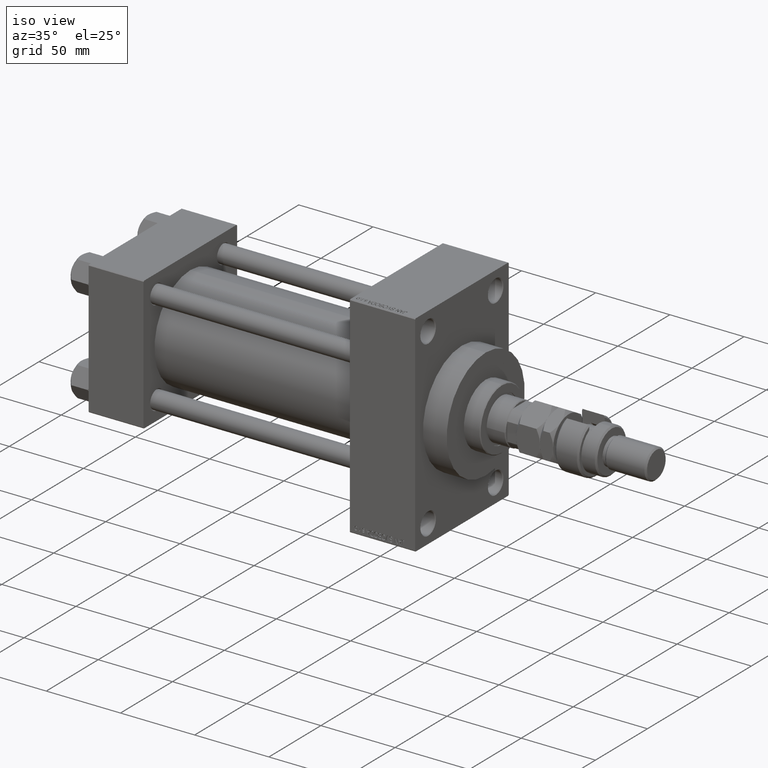
[diagram: clean part render]
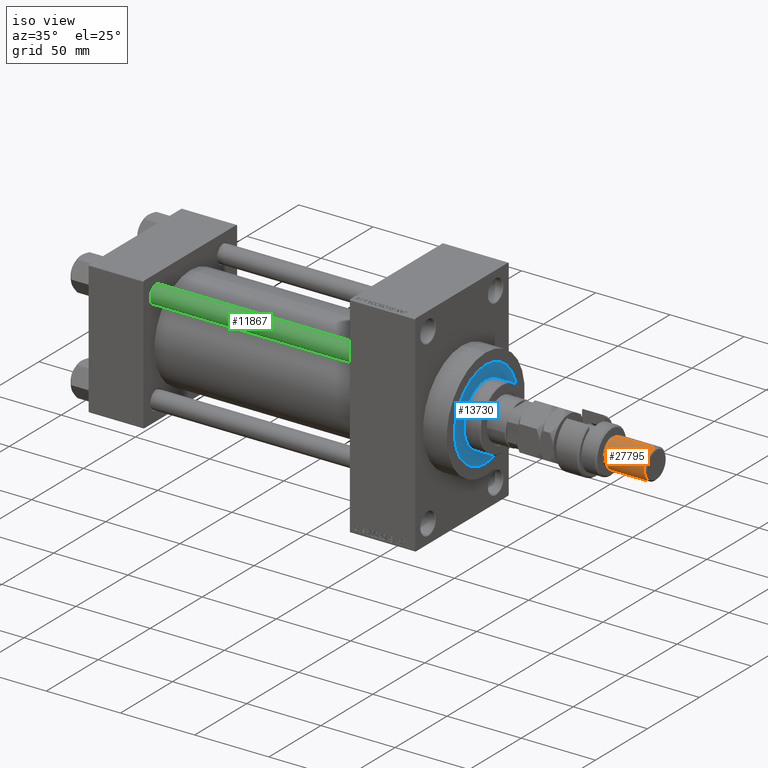
[diagram: same view with three faces highlighted in distinct colors, each labeled with its STEP entity id]
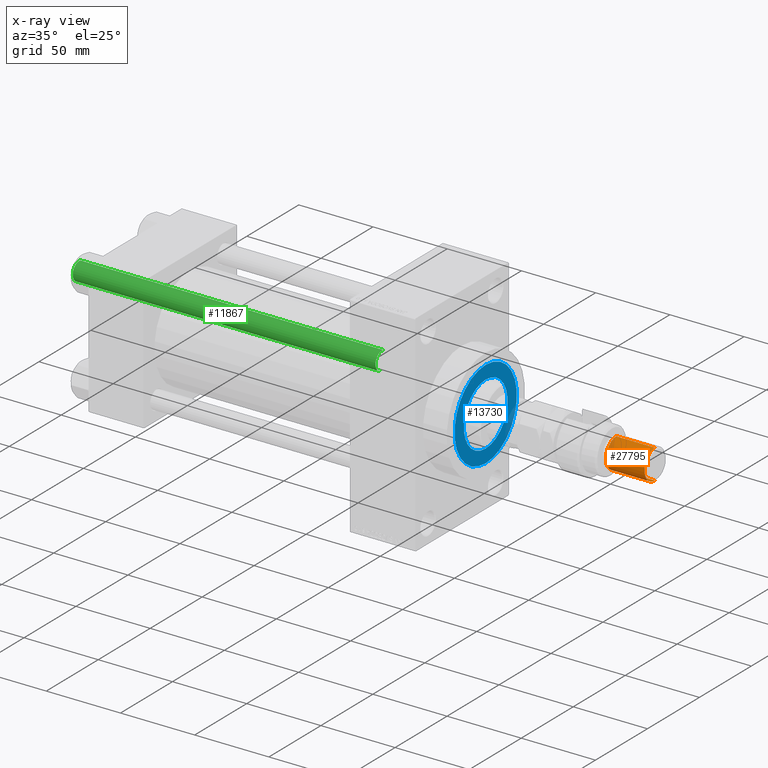
[diagram: x-ray of the same camera — body ghosted, the three highlighted faces saturated]
A machine part, iso view with three faces highlighted in distinct colors.
The next image is the same camera in x-ray (body ghosted, the three faces saturated) — at least one of them is partly hidden behind the body in this view.
Their STEP definitions:

[orange] entity #27795 — the highlighted cylindrical surface (edge-blend (fillet) strip) has radius 10 mm, axis along (-1, -0, 0).
#711 = EDGE_LOOP ( 'NONE', ( #24158, #45330, #40209, #37050 ) ) ;
#1414 = DIRECTION ( 'NONE',  ( -0.000000000000000000, -0.000000000000000000, -1.000000000000000000 ) ) ;
#2160 = LINE ( 'NONE', #28244, #18640 ) ;
#4596 = VECTOR ( 'NONE', #22952, 1000.000000000000000 ) ;
#6423 = AXIS2_PLACEMENT_3D ( 'NONE', #24288, #32890, #36692 ) ;
#7818 = VERTEX_POINT ( 'NONE', #14844 ) ;
#9440 = CARTESIAN_POINT ( 'NONE',  ( 10.00000000000000000, 1.224646799147353256E-15, 29.00000000000000711 ) ) ;
#9944 = EDGE_CURVE ( 'NONE', #13372, #26056, #26753, .T. ) ;
#9946 = AXIS2_PLACEMENT_3D ( 'NONE', #22884, #49240, #22640 ) ;
#10474 = CIRCLE ( 'NONE', #6423, 10.00000000000000000 ) ;
#12013 = CARTESIAN_POINT ( 'NONE',  ( -10.00000000000000000, 0.000000000000000000, 29.00000000000000711 ) ) ;
#12066 = EDGE_CURVE ( 'NONE', #7818, #13372, #14385, .T. ) ;
#13372 = VERTEX_POINT ( 'NONE', #35009 ) ;
#14385 = CIRCLE ( 'NONE', #35440, 10.00000000000000000 ) ;
#14844 = CARTESIAN_POINT ( 'NONE',  ( 10.00000000000000000, 1.224646799147353256E-15, 54.99999999999998579 ) ) ;
#16380 = EDGE_CURVE ( 'NONE', #26056, #23955, #10474, .T. ) ;
#18640 = VECTOR ( 'NONE', #1414, 1000.000000000000000 ) ;
#22640 = DIRECTION ( 'NONE',  ( -1.000000000000000000, 0.000000000000000000, 0.000000000000000000 ) ) ;
#22884 = CARTESIAN_POINT ( 'NONE',  ( 0.000000000000000000, 0.000000000000000000, 56.00000000000000711 ) ) ;
#22952 = DIRECTION ( 'NONE',  ( -0.000000000000000000, -0.000000000000000000, -1.000000000000000000 ) ) ;
#23241 = DIRECTION ( 'NONE',  ( 1.000000000000000000, 0.000000000000000000, 0.000000000000000000 ) ) ;
#23955 = VERTEX_POINT ( 'NONE', #9440 ) ;
#24158 = ORIENTED_EDGE ( 'NONE', *, *, #32240, .F. ) ;
#24288 = CARTESIAN_POINT ( 'NONE',  ( 0.000000000000000000, 0.000000000000000000, 29.00000000000000711 ) ) ;
#25940 = FACE_OUTER_BOUND ( 'NONE', #711, .T. ) ;
#26056 = VERTEX_POINT ( 'NONE', #12013 ) ;
#26753 = LINE ( 'NONE', #42204, #4596 ) ;
#27795 = ADVANCED_FACE ( 'NONE', ( #25940 ), #30996, .T. ) ;
#28244 = CARTESIAN_POINT ( 'NONE',  ( 10.00000000000000000, 1.224646799147353256E-15, 56.00000000000000711 ) ) ;
#30358 = DIRECTION ( 'NONE',  ( 0.000000000000000000, 0.000000000000000000, -1.000000000000000000 ) ) ;
#30996 = CYLINDRICAL_SURFACE ( 'NONE', #9946, 10.00000000000000000 ) ;
#32240 = EDGE_CURVE ( 'NONE', #7818, #23955, #2160, .T. ) ;
#32890 = DIRECTION ( 'NONE',  ( -0.000000000000000000, -0.000000000000000000, 1.000000000000000000 ) ) ;
#34902 = CARTESIAN_POINT ( 'NONE',  ( 0.000000000000000000, 0.000000000000000000, 54.99999999999998579 ) ) ;
#35009 = CARTESIAN_POINT ( 'NONE',  ( -10.00000000000000000, 0.000000000000000000, 54.99999999999998579 ) ) ;
#35440 = AXIS2_PLACEMENT_3D ( 'NONE', #34902, #30358, #23241 ) ;
#36692 = DIRECTION ( 'NONE',  ( 1.000000000000000000, 0.000000000000000000, 0.000000000000000000 ) ) ;
#37050 = ORIENTED_EDGE ( 'NONE', *, *, #16380, .T. ) ;
#40209 = ORIENTED_EDGE ( 'NONE', *, *, #9944, .T. ) ;
#42204 = CARTESIAN_POINT ( 'NONE',  ( -10.00000000000000000, 0.000000000000000000, 56.00000000000000711 ) ) ;
#45330 = ORIENTED_EDGE ( 'NONE', *, *, #12066, .T. ) ;
#49240 = DIRECTION ( 'NONE',  ( -0.000000000000000000, -0.000000000000000000, -1.000000000000000000 ) ) ;

[blue] entity #13730 — the highlighted planar face has unit normal (1, -0, -0).
#2189 = DIRECTION ( 'NONE',  ( 1.000000000000000000, 0.000000000000000000, -0.000000000000000000 ) ) ;
#3298 = ORIENTED_EDGE ( 'NONE', *, *, #41228, .F. ) ;
#3878 = DIRECTION ( 'NONE',  ( 1.000000000000000000, 0.000000000000000000, 0.000000000000000000 ) ) ;
#6784 = VERTEX_POINT ( 'NONE', #22277 ) ;
#8473 = EDGE_CURVE ( 'NONE', #11992, #6784, #38552, .T. ) ;
#10517 = FACE_BOUND ( 'NONE', #21741, .T. ) ;
#10943 = DIRECTION ( 'NONE',  ( 1.000000000000000000, 0.000000000000000000, 0.000000000000000000 ) ) ;
#11195 = CARTESIAN_POINT ( 'NONE',  ( 0.000000000000000000, 0.000000000000000000, 43.25999999999999801 ) ) ;
#11657 = DIRECTION ( 'NONE',  ( 1.000000000000000000, 0.000000000000000000, 0.000000000000000000 ) ) ;
#11992 = VERTEX_POINT ( 'NONE', #13148 ) ;
#12184 = VERTEX_POINT ( 'NONE', #36400 ) ;
#13148 = CARTESIAN_POINT ( 'NONE',  ( -30.00000000000000000, 0.000000000000000000, 43.25999999999999801 ) ) ;
#13730 = ADVANCED_FACE ( 'NONE', ( #10517, #40670 ), #25976, .T. ) ;
#15005 = DIRECTION ( 'NONE',  ( 0.000000000000000000, 0.000000000000000000, 1.000000000000000000 ) ) ;
#15221 = CARTESIAN_POINT ( 'NONE',  ( 0.000000000000000000, 0.000000000000000000, 43.25999999999999801 ) ) ;
#15489 = ORIENTED_EDGE ( 'NONE', *, *, #43056, .F. ) ;
#15911 = AXIS2_PLACEMENT_3D ( 'NONE', #15221, #30679, #11657 ) ;
#18011 = CIRCLE ( 'NONE', #31801, 21.00000000000000000 ) ;
#21741 = EDGE_LOOP ( 'NONE', ( #3298, #15489 ) ) ;
#21923 = CARTESIAN_POINT ( 'NONE',  ( 0.000000000000000000, 0.000000000000000000, 43.25999999999999801 ) ) ;
#22277 = CARTESIAN_POINT ( 'NONE',  ( 30.00000000000000000, 3.673940397442059178E-15, 43.25999999999999801 ) ) ;
#23581 = ORIENTED_EDGE ( 'NONE', *, *, #8473, .T. ) ;
#24762 = VERTEX_POINT ( 'NONE', #42724 ) ;
#25976 = PLANE ( 'NONE',  #38697 ) ;
#26820 = CARTESIAN_POINT ( 'NONE',  ( 0.000000000000000000, 0.000000000000000000, 43.25999999999999801 ) ) ;
#26919 = DIRECTION ( 'NONE',  ( 0.000000000000000000, 0.000000000000000000, 1.000000000000000000 ) ) ;
#27008 = ORIENTED_EDGE ( 'NONE', *, *, #37170, .T. ) ;
#30129 = DIRECTION ( 'NONE',  ( 1.000000000000000000, 0.000000000000000000, 0.000000000000000000 ) ) ;
#30679 = DIRECTION ( 'NONE',  ( 0.000000000000000000, 0.000000000000000000, 1.000000000000000000 ) ) ;
#30973 = CIRCLE ( 'NONE', #44694, 30.00000000000000000 ) ;
#31801 = AXIS2_PLACEMENT_3D ( 'NONE', #26820, #33931, #30129 ) ;
#33931 = DIRECTION ( 'NONE',  ( 0.000000000000000000, 0.000000000000000000, 1.000000000000000000 ) ) ;
#36400 = CARTESIAN_POINT ( 'NONE',  ( 21.00000000000000000, 2.571758278209441661E-15, 43.25999999999999801 ) ) ;
#37170 = EDGE_CURVE ( 'NONE', #6784, #11992, #30973, .T. ) ;
#38552 = CIRCLE ( 'NONE', #15911, 30.00000000000000000 ) ;
#38584 = CARTESIAN_POINT ( 'NONE',  ( 0.000000000000000000, 0.000000000000000000, 43.25999999999999801 ) ) ;
#38697 = AXIS2_PLACEMENT_3D ( 'NONE', #21923, #41427, #2189 ) ;
#38994 = EDGE_LOOP ( 'NONE', ( #23581, #27008 ) ) ;
#40670 = FACE_OUTER_BOUND ( 'NONE', #38994, .T. ) ;
#40753 = AXIS2_PLACEMENT_3D ( 'NONE', #11195, #15005, #10943 ) ;
#41228 = EDGE_CURVE ( 'NONE', #24762, #12184, #18011, .T. ) ;
#41427 = DIRECTION ( 'NONE',  ( 0.000000000000000000, 0.000000000000000000, 1.000000000000000000 ) ) ;
#42724 = CARTESIAN_POINT ( 'NONE',  ( -21.00000000000000000, 0.000000000000000000, 43.25999999999999801 ) ) ;
#43056 = EDGE_CURVE ( 'NONE', #12184, #24762, #48022, .T. ) ;
#44694 = AXIS2_PLACEMENT_3D ( 'NONE', #38584, #26919, #3878 ) ;
#48022 = CIRCLE ( 'NONE', #40753, 21.00000000000000000 ) ;

[green] entity #11867 — the highlighted cylindrical surface (edge-blend (fillet) strip) has radius 6 mm, axis along (1, 0, 0).
#28 = FACE_OUTER_BOUND ( 'NONE', #20938, .T. ) ;
#278 = DIRECTION ( 'NONE',  ( -1.000000000000000000, 0.000000000000000000, 0.000000000000000000 ) ) ;
#1483 = EDGE_CURVE ( 'NONE', #17798, #44209, #27972, .T. ) ;
#5692 = EDGE_CURVE ( 'NONE', #17798, #20173, #29536, .T. ) ;
#9214 = CARTESIAN_POINT ( 'NONE',  ( -6.000000000000000888, 0.000000000000000000, 205.0000000000000000 ) ) ;
#10931 = ORIENTED_EDGE ( 'NONE', *, *, #5692, .T. ) ;
#11101 = ORIENTED_EDGE ( 'NONE', *, *, #46406, .T. ) ;
#11152 = CARTESIAN_POINT ( 'NONE',  ( 0.000000000000000000, 0.000000000000000000, 205.0000000000000000 ) ) ;
#11867 = ADVANCED_FACE ( 'NONE', ( #28 ), #30914, .T. ) ;
#13225 = DIRECTION ( 'NONE',  ( -0.000000000000000000, -0.000000000000000000, -1.000000000000000000 ) ) ;
#14964 = DIRECTION ( 'NONE',  ( -0.000000000000000000, -0.000000000000000000, -1.000000000000000000 ) ) ;
#14985 = AXIS2_PLACEMENT_3D ( 'NONE', #22214, #37676, #15360 ) ;
#15093 = CARTESIAN_POINT ( 'NONE',  ( -6.000000000000000888, 0.000000000000000000, 204.5000000000000568 ) ) ;
#15360 = DIRECTION ( 'NONE',  ( 1.000000000000000000, 0.000000000000000000, 0.000000000000000000 ) ) ;
#16014 = AXIS2_PLACEMENT_3D ( 'NONE', #11152, #14964, #278 ) ;
#17798 = VERTEX_POINT ( 'NONE', #15093 ) ;
#20012 = CARTESIAN_POINT ( 'NONE',  ( -6.000000000000000888, 0.000000000000000000, 0.5000000000001114664 ) ) ;
#20173 = VERTEX_POINT ( 'NONE', #20897 ) ;
#20897 = CARTESIAN_POINT ( 'NONE',  ( 6.000000000000000888, 7.347880794884119736E-16, 204.5000000000000568 ) ) ;
#20938 = EDGE_LOOP ( 'NONE', ( #10931, #28470, #11101, #47767 ) ) ;
#22214 = CARTESIAN_POINT ( 'NONE',  ( 0.000000000000000000, 0.000000000000000000, 0.5000000000001114664 ) ) ;
#23322 = DIRECTION ( 'NONE',  ( 1.000000000000000000, 0.000000000000000000, 0.000000000000000000 ) ) ;
#27119 = CARTESIAN_POINT ( 'NONE',  ( 0.000000000000000000, 0.000000000000000000, 204.5000000000000568 ) ) ;
#27972 = LINE ( 'NONE', #9214, #47274 ) ;
#28469 = DIRECTION ( 'NONE',  ( -0.000000000000000000, -0.000000000000000000, -1.000000000000000000 ) ) ;
#28470 = ORIENTED_EDGE ( 'NONE', *, *, #48543, .T. ) ;
#29536 = CIRCLE ( 'NONE', #45691, 6.000000000000000888 ) ;
#30914 = CYLINDRICAL_SURFACE ( 'NONE', #16014, 6.000000000000000888 ) ;
#31737 = LINE ( 'NONE', #43632, #33678 ) ;
#33678 = VECTOR ( 'NONE', #13225, 1000.000000000000000 ) ;
#36448 = VERTEX_POINT ( 'NONE', #37324 ) ;
#36818 = CIRCLE ( 'NONE', #14985, 6.000000000000000888 ) ;
#37324 = CARTESIAN_POINT ( 'NONE',  ( 6.000000000000000888, 7.347880794884119736E-16, 0.5000000000001114664 ) ) ;
#37676 = DIRECTION ( 'NONE',  ( -0.000000000000000000, -0.000000000000000000, 1.000000000000000000 ) ) ;
#38038 = DIRECTION ( 'NONE',  ( 0.000000000000000000, 0.000000000000000000, -1.000000000000000000 ) ) ;
#43632 = CARTESIAN_POINT ( 'NONE',  ( 6.000000000000000888, 7.347880794884119736E-16, 205.0000000000000000 ) ) ;
#44209 = VERTEX_POINT ( 'NONE', #20012 ) ;
#45691 = AXIS2_PLACEMENT_3D ( 'NONE', #27119, #38038, #23322 ) ;
#46406 = EDGE_CURVE ( 'NONE', #36448, #44209, #36818, .T. ) ;
#47274 = VECTOR ( 'NONE', #28469, 1000.000000000000000 ) ;
#47767 = ORIENTED_EDGE ( 'NONE', *, *, #1483, .F. ) ;
#48543 = EDGE_CURVE ( 'NONE', #20173, #36448, #31737, .T. ) ;